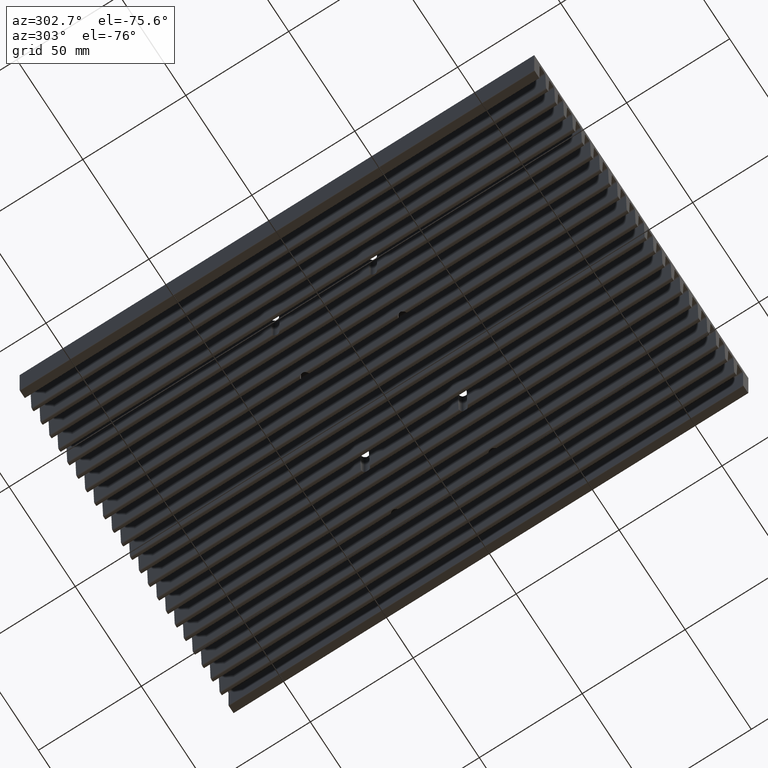
[diagram: clean part render]
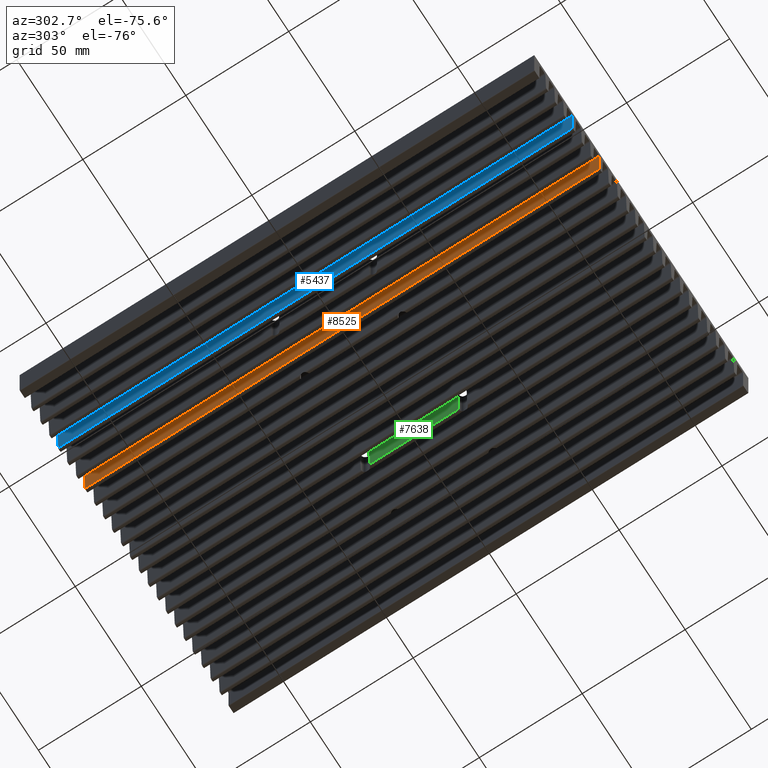
[diagram: same view with three faces highlighted in distinct colors, each labeled with its STEP entity id]
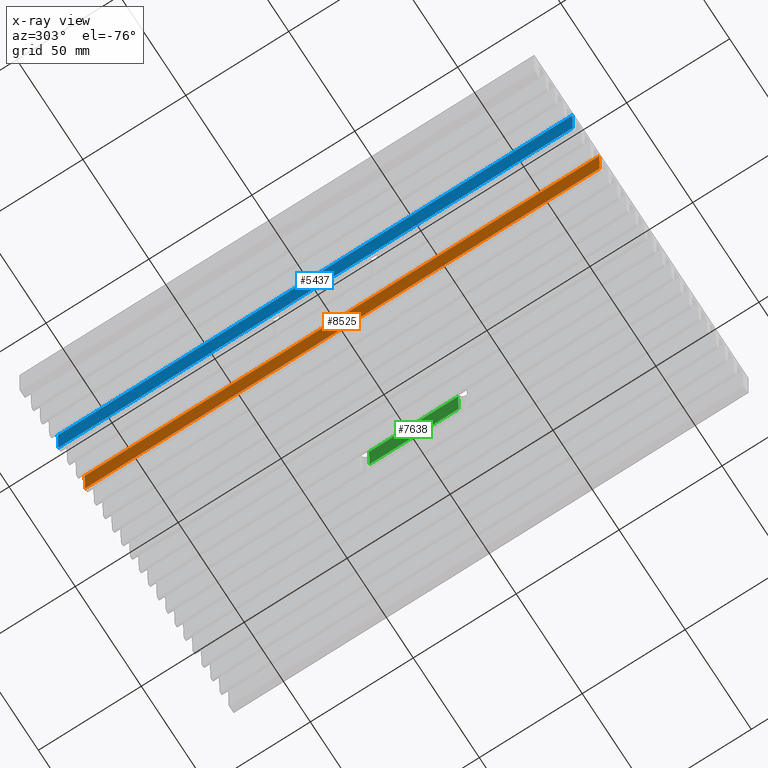
[diagram: x-ray of the same camera — body ghosted, the three highlighted faces saturated]
A machine part, auxiliary view with three faces highlighted in distinct colors.
The next image is the same camera in x-ray (body ghosted, the three faces saturated) — at least one of them is partly hidden behind the body in this view.
Their STEP definitions:

[orange] entity #8525 — the highlighted planar face has unit normal (-0.9997, 0, -0.0252).
#8467=CARTESIAN_POINT('',(-31.459713706951646,-125.0,-24.073321124083179));
#8468=VERTEX_POINT('',#8467);
#8476=CARTESIAN_POINT('',(-31.459713706951646,125.0,-24.073321124083122));
#8477=VERTEX_POINT('',#8476);
#8478=CARTESIAN_POINT('',(-31.459713706951646,125.0,-24.073321124083122));
#8479=DIRECTION('',(0.0,-1.0,0.0));
#8480=VECTOR('',#8479,250.0);
#8481=LINE('',#8478,#8480);
#8482=EDGE_CURVE('',#8477,#8468,#8481,.T.);
#8495=CARTESIAN_POINT('',(-31.459713706951646,125.0,-24.073321124083122));
#8496=DIRECTION('',(-0.99968248880085,5.550242E-018,-0.025197650385284));
#8497=DIRECTION('',(-0.025197650385284,0.0,0.99968248880085));
#8498=AXIS2_PLACEMENT_3D('',#8495,#8496,#8497);
#8499=PLANE('',#8498);
#8500=CARTESIAN_POINT('',(-31.936046861178824,125.0,-5.175451448333888));
#8501=VERTEX_POINT('',#8500);
#8502=CARTESIAN_POINT('',(-31.936046861178824,-125.0,-5.175451448333943));
#8503=VERTEX_POINT('',#8502);
#8504=CARTESIAN_POINT('',(-31.936046861178824,125.0,-5.175451448333888));
#8505=DIRECTION('',(0.0,-1.0,0.0));
#8506=VECTOR('',#8505,250.0);
#8507=LINE('',#8504,#8506);
#8508=EDGE_CURVE('',#8501,#8503,#8507,.T.);
#8509=ORIENTED_EDGE('',*,*,#8508,.F.);
#8510=CARTESIAN_POINT('',(-31.459713706951646,125.0,-24.073321124083122));
#8511=DIRECTION('',(-0.025197650385284,0.0,0.99968248880085));
#8512=VECTOR('',#8511,18.903871866774239);
#8513=LINE('',#8510,#8512);
#8514=EDGE_CURVE('',#8477,#8501,#8513,.T.);
#8515=ORIENTED_EDGE('',*,*,#8514,.F.);
#8516=ORIENTED_EDGE('',*,*,#8482,.T.);
#8517=CARTESIAN_POINT('',(-31.459713706951646,-125.0,-24.073321124083179));
#8518=DIRECTION('',(-0.025197650385284,0.0,0.99968248880085));
#8519=VECTOR('',#8518,18.903871866774239);
#8520=LINE('',#8517,#8519);
#8521=EDGE_CURVE('',#8468,#8503,#8520,.T.);
#8522=ORIENTED_EDGE('',*,*,#8521,.T.);
#8523=EDGE_LOOP('',(#8509,#8515,#8516,#8522));
#8524=FACE_OUTER_BOUND('',#8523,.T.);
#8525=ADVANCED_FACE('',(#8524),#8499,.T.);

[blue] entity #5437 — the highlighted planar face has unit normal (-0.9997, 0, -0.0252).
#5379=CARTESIAN_POINT('',(-51.799713706951792,-125.0,-24.073321124083179));
#5380=VERTEX_POINT('',#5379);
#5388=CARTESIAN_POINT('',(-51.799713706951792,125.0,-24.073321124083122));
#5389=VERTEX_POINT('',#5388);
#5390=CARTESIAN_POINT('',(-51.799713706951792,125.0,-24.073321124083122));
#5391=DIRECTION('',(0.0,-1.0,0.0));
#5392=VECTOR('',#5391,250.0);
#5393=LINE('',#5390,#5392);
#5394=EDGE_CURVE('',#5389,#5380,#5393,.T.);
#5407=CARTESIAN_POINT('',(-51.799713706951792,125.0,-24.073321124083122));
#5408=DIRECTION('',(-0.99968248880085,5.550242E-018,-0.025197650385284));
#5409=DIRECTION('',(-0.025197650385284,0.0,0.99968248880085));
#5410=AXIS2_PLACEMENT_3D('',#5407,#5408,#5409);
#5411=PLANE('',#5410);
#5412=CARTESIAN_POINT('',(-52.276046861178969,-125.0,-5.175451448333943));
#5413=VERTEX_POINT('',#5412);
#5414=CARTESIAN_POINT('',(-51.799713706951792,-125.0,-24.073321124083179));
#5415=DIRECTION('',(-0.025197650385284,0.0,0.99968248880085));
#5416=VECTOR('',#5415,18.903871866774239);
#5417=LINE('',#5414,#5416);
#5418=EDGE_CURVE('',#5380,#5413,#5417,.T.);
#5419=ORIENTED_EDGE('',*,*,#5418,.T.);
#5420=CARTESIAN_POINT('',(-52.276046861178969,125.0,-5.175451448333888));
#5421=VERTEX_POINT('',#5420);
#5422=CARTESIAN_POINT('',(-52.276046861178969,125.0,-5.175451448333888));
#5423=DIRECTION('',(0.0,-1.0,0.0));
#5424=VECTOR('',#5423,250.0);
#5425=LINE('',#5422,#5424);
#5426=EDGE_CURVE('',#5421,#5413,#5425,.T.);
#5427=ORIENTED_EDGE('',*,*,#5426,.F.);
#5428=CARTESIAN_POINT('',(-51.799713706951792,125.0,-24.073321124083122));
#5429=DIRECTION('',(-0.025197650385284,0.0,0.99968248880085));
#5430=VECTOR('',#5429,18.903871866774239);
#5431=LINE('',#5428,#5430);
#5432=EDGE_CURVE('',#5389,#5421,#5431,.T.);
#5433=ORIENTED_EDGE('',*,*,#5432,.F.);
#5434=ORIENTED_EDGE('',*,*,#5394,.T.);
#5435=EDGE_LOOP('',(#5419,#5427,#5433,#5434));
#5436=FACE_OUTER_BOUND('',#5435,.T.);
#5437=ADVANCED_FACE('',(#5436),#5411,.T.);

[green] entity #7638 — the highlighted planar face has unit normal (-0.9997, 0, -0.0252).
#1511=CARTESIAN_POINT('',(22.303953138820958,-21.659171066605531,-5.17545144833392));
#1512=VERTEX_POINT('',#1511);
#1530=CARTESIAN_POINT('',(22.78028629304859,-21.668788911617721,-24.073321124083154));
#1531=VERTEX_POINT('',#1530);
#1532=CARTESIAN_POINT('',(22.499999999979991,-23.749999999882874,-12.953343874340892));
#1533=DIRECTION('',(0.999682488800849,-5.550242E-018,0.025197650385308));
#1534=DIRECTION('',(-0.025197650385308,2.219741E-016,0.999682488800849));
#1535=AXIS2_PLACEMENT_3D('',#1532,#1533,#1534);
#1536=ELLIPSE('',#1535,83.341103947710309,2.099999999999994);
#1537=EDGE_CURVE('',#1531,#1512,#1536,.T.);
#2039=CARTESIAN_POINT('',(22.78028629304859,21.668788911851966,-24.073321124083144));
#2040=VERTEX_POINT('',#2039);
#2064=CARTESIAN_POINT('',(22.303953138820958,21.659171066839789,-5.175451448333911));
#2065=VERTEX_POINT('',#2064);
#2066=CARTESIAN_POINT('',(22.499999999979991,23.750000000117126,-12.953343874340881));
#2067=DIRECTION('',(0.999682488800849,-5.550242E-018,0.025197650385308));
#2068=DIRECTION('',(-0.025197650385308,2.219741E-016,0.999682488800849));
#2069=AXIS2_PLACEMENT_3D('',#2066,#2067,#2068);
#2070=ELLIPSE('',#2069,83.341103947710309,2.099999999999994);
#2071=EDGE_CURVE('',#2065,#2040,#2070,.T.);
#7594=CARTESIAN_POINT('',(22.78028629304859,21.668788911851962,-24.073321124083144));
#7595=DIRECTION('',(0.0,-1.0,0.0));
#7596=VECTOR('',#7595,43.337577823469687);
#7597=LINE('',#7594,#7596);
#7598=EDGE_CURVE('',#2040,#1531,#7597,.T.);
#7622=CARTESIAN_POINT('',(22.78028629304859,125.0,-24.073321124083122));
#7623=DIRECTION('',(-0.999682488800849,5.550242E-018,-0.025197650385308));
#7624=DIRECTION('',(-0.025197650385308,0.0,0.999682488800849));
#7625=AXIS2_PLACEMENT_3D('',#7622,#7623,#7624);
#7626=PLANE('',#7625);
#7627=ORIENTED_EDGE('',*,*,#1537,.T.);
#7628=CARTESIAN_POINT('',(22.303953138820958,21.659171066839789,-5.175451448333911));
#7629=DIRECTION('',(0.0,-1.0,0.0));
#7630=VECTOR('',#7629,43.318342133445313);
#7631=LINE('',#7628,#7630);
#7632=EDGE_CURVE('',#2065,#1512,#7631,.T.);
#7633=ORIENTED_EDGE('',*,*,#7632,.F.);
#7634=ORIENTED_EDGE('',*,*,#2071,.T.);
#7635=ORIENTED_EDGE('',*,*,#7598,.T.);
#7636=EDGE_LOOP('',(#7627,#7633,#7634,#7635));
#7637=FACE_OUTER_BOUND('',#7636,.T.);
#7638=ADVANCED_FACE('',(#7637),#7626,.T.);